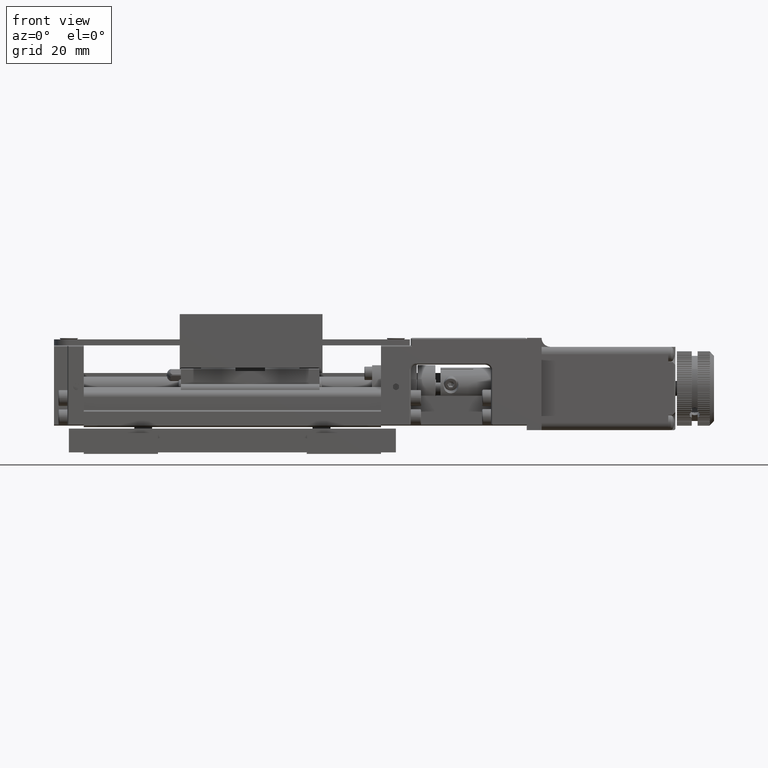
[diagram: clean part render]
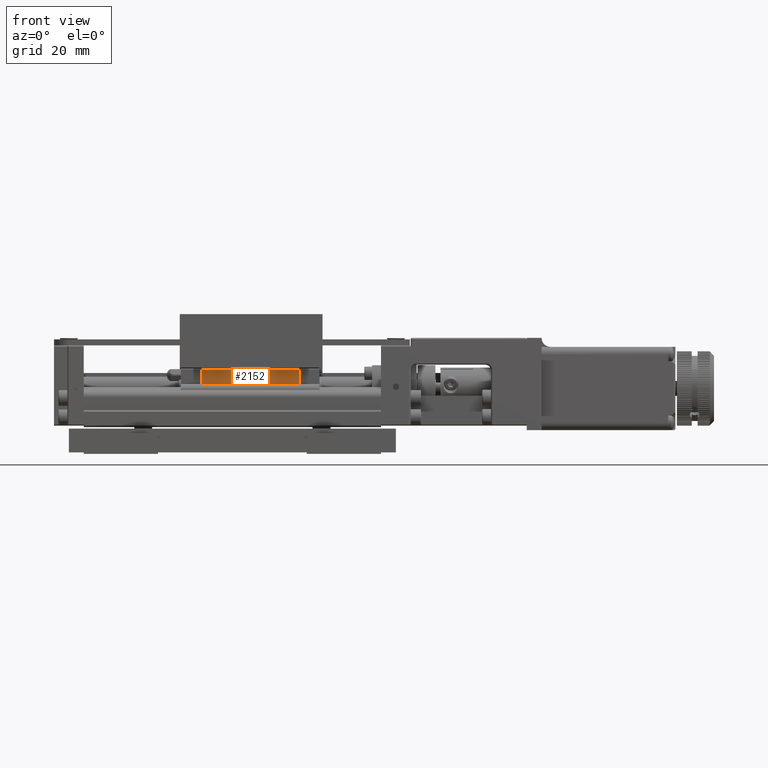
[diagram: same view with one face highlighted and labeled with its STEP entity id]
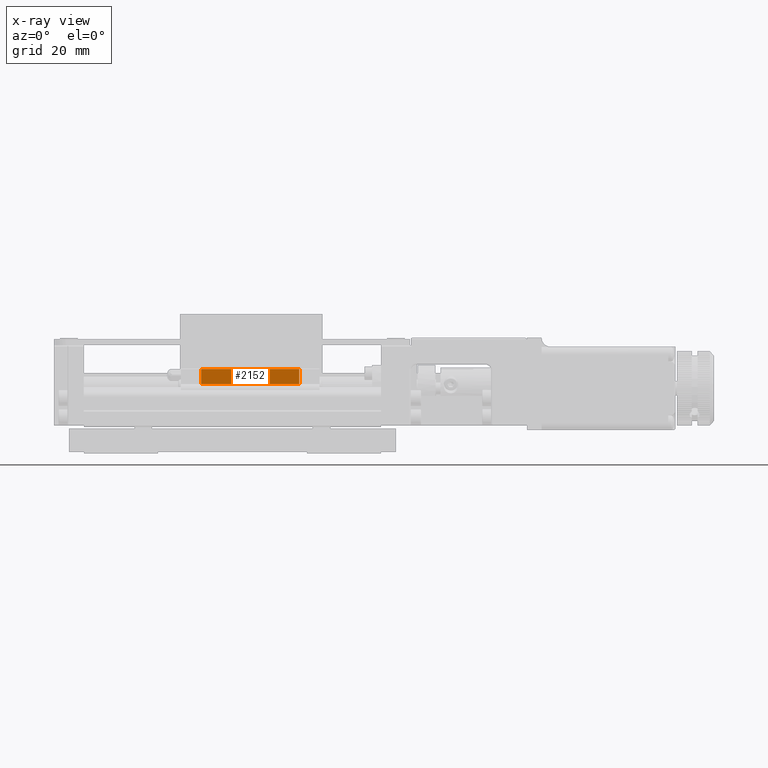
[diagram: x-ray of the same camera — body ghosted, the highlighted face saturated]
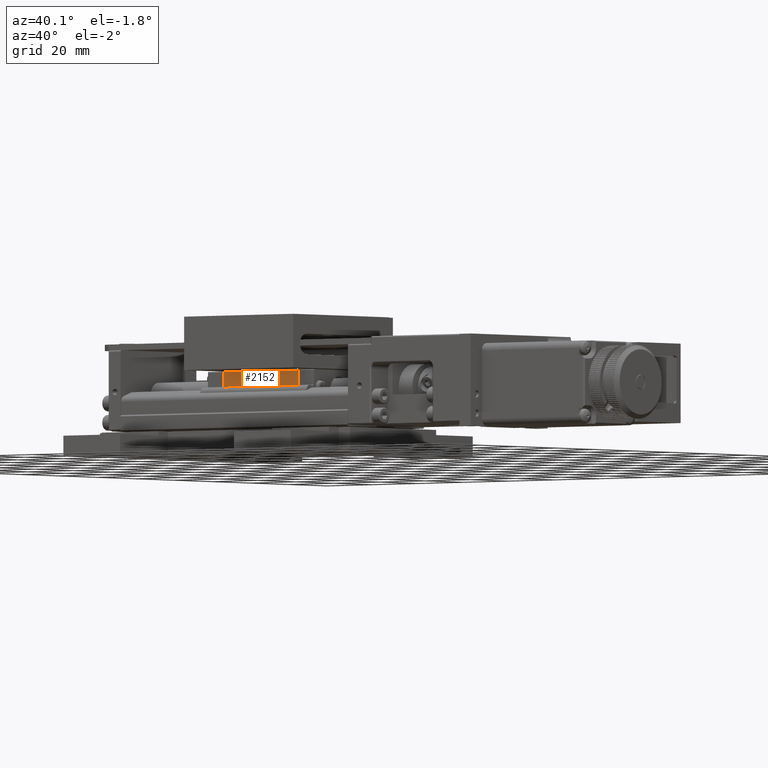
[diagram: same view with one face highlighted and labeled with its STEP entity id]
A machine part, front view. The second image highlights one B-rep face of the part: STEP entity #2152.
The next image is the same camera in x-ray: the body ghosted, the highlighted face saturated — about 0% of this face is hidden behind the body in this view.
A second angle (auxiliary view) of the same face is appended — the face is thin or edge-on in the first view.
In plain terms, the highlighted planar face has unit normal (0, -1, 0).
Its self-contained STEP definition (entity closure, byte-faithful):
#617=PLANE('',#41219);
#2152=ADVANCED_FACE('',(#4475),#617,.T.);
#4475=FACE_OUTER_BOUND('',#6828,.T.);
#6828=EDGE_LOOP('',(#10347,#10348,#10349,#10350,#10351,#10352,#10353,#10354));
#10347=ORIENTED_EDGE('',*,*,#23198,.F.);
#10348=ORIENTED_EDGE('',*,*,#22828,.F.);
#10349=ORIENTED_EDGE('',*,*,#23215,.T.);
#10350=ORIENTED_EDGE('',*,*,#23216,.T.);
#10351=ORIENTED_EDGE('',*,*,#23217,.T.);
#10352=ORIENTED_EDGE('',*,*,#23218,.T.);
#10353=ORIENTED_EDGE('',*,*,#23219,.T.);
#10354=ORIENTED_EDGE('',*,*,#23220,.T.);
#22828=EDGE_CURVE('',#36191,#36192,#29495,.T.);
#23198=EDGE_CURVE('',#36192,#36462,#29717,.T.);
#23215=EDGE_CURVE('',#36191,#36475,#29734,.T.);
#23216=EDGE_CURVE('',#36475,#36476,#29735,.T.);
#23217=EDGE_CURVE('',#36476,#36477,#29736,.T.);
#23218=EDGE_CURVE('',#36477,#36478,#29737,.T.);
#23219=EDGE_CURVE('',#36478,#36479,#29738,.T.);
#23220=EDGE_CURVE('',#36479,#36462,#29739,.T.);
#29495=B_SPLINE_CURVE_WITH_KNOTS('',1,(#62401,#62402),.UNSPECIFIED.,.F.,
 .F.,(2,2),(0.,5.01859147),.UNSPECIFIED.);
#29717=B_SPLINE_CURVE_WITH_KNOTS('',1,(#63945,#63946),.UNSPECIFIED.,.F.,
 .F.,(2,2),(0.,33.),.UNSPECIFIED.);
#29734=B_SPLINE_CURVE_WITH_KNOTS('',1,(#63979,#63980),.UNSPECIFIED.,.F.,
 .F.,(2,2),(0.,11.5),.UNSPECIFIED.);
#29735=B_SPLINE_CURVE_WITH_KNOTS('',1,(#63981,#63982),.UNSPECIFIED.,.F.,
 .F.,(2,2),(0.,0.699999999999999),.UNSPECIFIED.);
#29736=B_SPLINE_CURVE_WITH_KNOTS('',1,(#63983,#63984),.UNSPECIFIED.,.F.,
 .F.,(2,2),(0.,10.),.UNSPECIFIED.);
#29737=B_SPLINE_CURVE_WITH_KNOTS('',1,(#63985,#63986),.UNSPECIFIED.,.F.,
 .F.,(2,2),(0.,0.699999999999999),.UNSPECIFIED.);
#29738=B_SPLINE_CURVE_WITH_KNOTS('',1,(#63987,#63988),.UNSPECIFIED.,.F.,
 .F.,(2,2),(0.,11.5),.UNSPECIFIED.);
#29739=B_SPLINE_CURVE_WITH_KNOTS('',1,(#63989,#63990),.UNSPECIFIED.,.F.,
 .F.,(2,2),(0.,5.01859147),.UNSPECIFIED.);
#36191=VERTEX_POINT('',#57508);
#36192=VERTEX_POINT('',#57509);
#36462=VERTEX_POINT('',#57779);
#36475=VERTEX_POINT('',#57792);
#36476=VERTEX_POINT('',#57793);
#36477=VERTEX_POINT('',#57794);
#36478=VERTEX_POINT('',#57795);
#36479=VERTEX_POINT('',#57796);
#41219=AXIS2_PLACEMENT_3D('',#46904,#43275,$);
#43275=DIRECTION('',(0.,-1.,0.));
#46904=CARTESIAN_POINT('',(-25.0815582617073,-10.8000009028663,22.8611708850152));
#57508=CARTESIAN_POINT('',(-28.5015582617073,-10.8000009028662,28.5016215020152));
#57509=CARTESIAN_POINT('',(-28.5015582617073,-10.8000009028663,23.4830300320152));
#57779=CARTESIAN_POINT('',(-61.5015582617073,-10.8000009028664,23.4830300320152));
#57792=CARTESIAN_POINT('',(-40.0015582617073,-10.8000009028663,28.5016215020152));
#57793=CARTESIAN_POINT('',(-40.0015582617073,-10.8000009028663,27.8016215020152));
#57794=CARTESIAN_POINT('',(-50.0015582617073,-10.8000009028663,27.8016215020152));
#57795=CARTESIAN_POINT('',(-50.0015582617073,-10.8000009028663,28.5016215020152));
#57796=CARTESIAN_POINT('',(-61.5015582617073,-10.8000009028664,28.5016215020152));
#62401=CARTESIAN_POINT('',(-28.5015582617073,-10.8000009028662,28.5016215020152));
#62402=CARTESIAN_POINT('',(-28.5015582617073,-10.8000009028663,23.4830300320152));
#63945=CARTESIAN_POINT('',(-28.5015582617073,-10.8000009028663,23.4830300320152));
#63946=CARTESIAN_POINT('',(-61.5015582617073,-10.8000009028664,23.4830300320152));
#63979=CARTESIAN_POINT('',(-28.5015582617073,-10.8000009028662,28.5016215020152));
#63980=CARTESIAN_POINT('',(-40.0015582617073,-10.8000009028663,28.5016215020152));
#63981=CARTESIAN_POINT('',(-40.0015582617073,-10.8000009028663,28.5016215020152));
#63982=CARTESIAN_POINT('',(-40.0015582617073,-10.8000009028663,27.8016215020152));
#63983=CARTESIAN_POINT('',(-40.0015582617073,-10.8000009028663,27.8016215020152));
#63984=CARTESIAN_POINT('',(-50.0015582617073,-10.8000009028663,27.8016215020152));
#63985=CARTESIAN_POINT('',(-50.0015582617073,-10.8000009028663,27.8016215020152));
#63986=CARTESIAN_POINT('',(-50.0015582617073,-10.8000009028663,28.5016215020152));
#63987=CARTESIAN_POINT('',(-50.0015582617073,-10.8000009028663,28.5016215020152));
#63988=CARTESIAN_POINT('',(-61.5015582617073,-10.8000009028664,28.5016215020152));
#63989=CARTESIAN_POINT('',(-61.5015582617073,-10.8000009028664,28.5016215020152));
#63990=CARTESIAN_POINT('',(-61.5015582617073,-10.8000009028664,23.4830300320152));